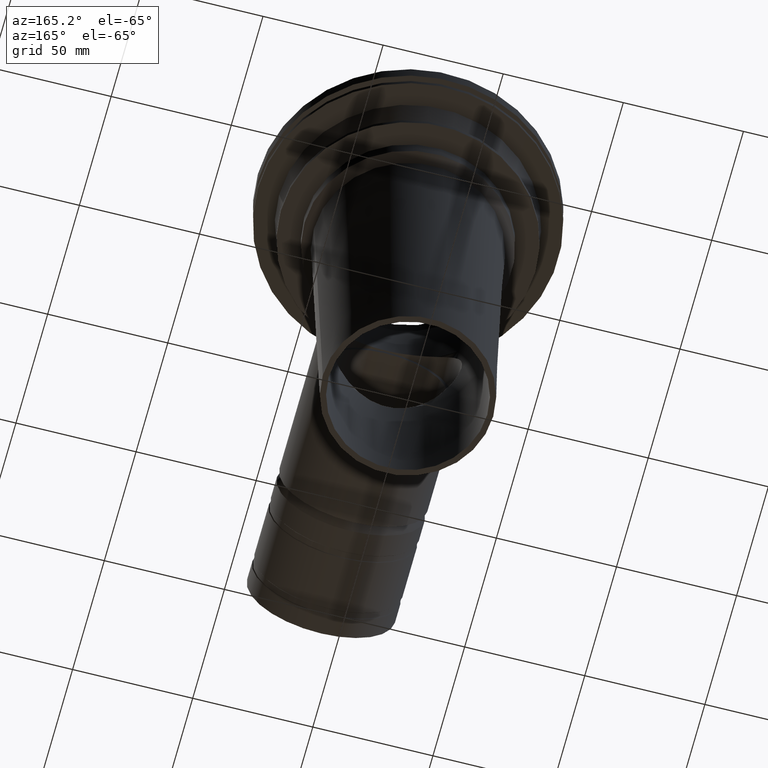
[diagram: clean part render]
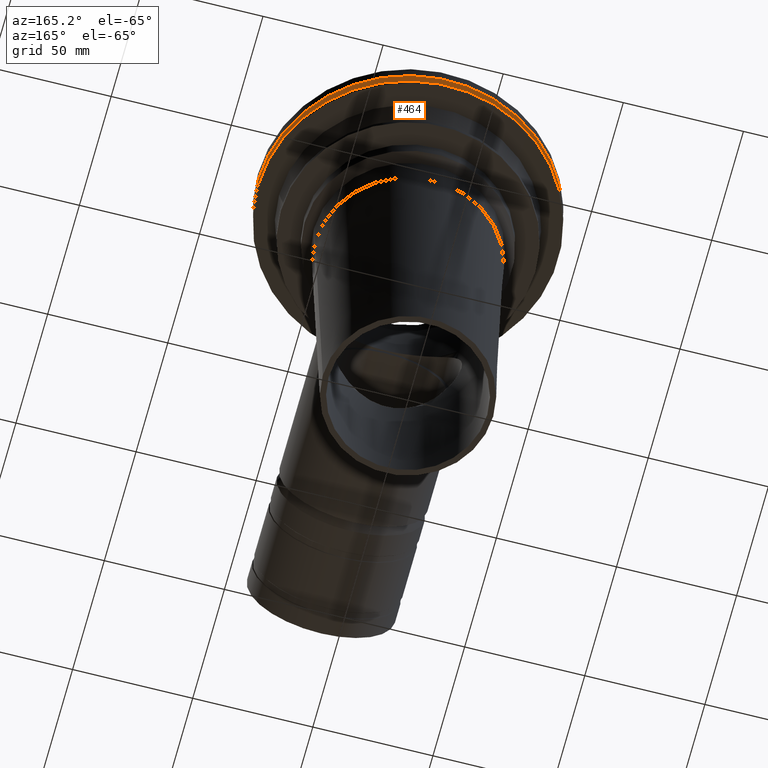
[diagram: same view with one face highlighted and labeled with its STEP entity id]
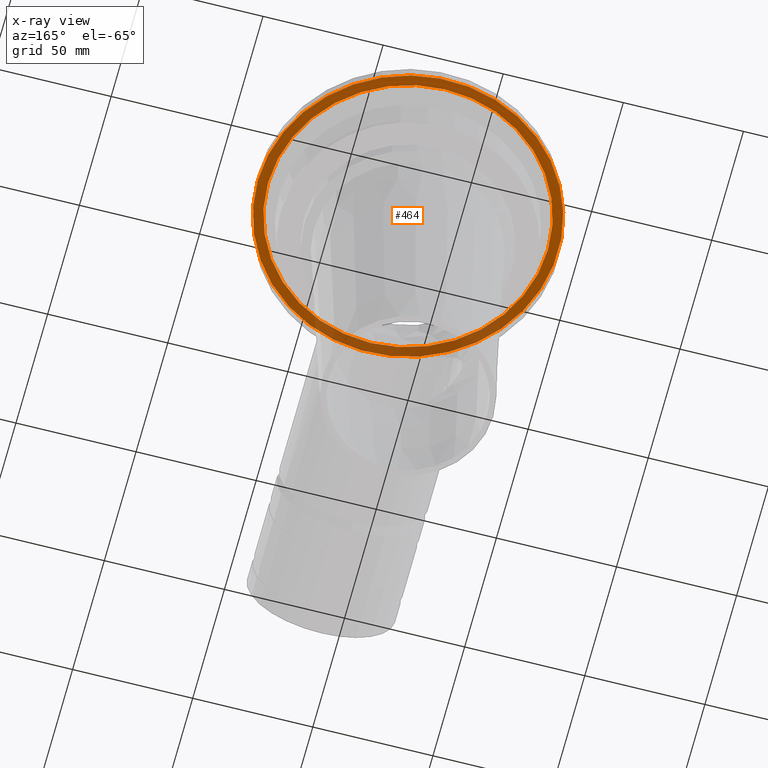
[diagram: x-ray of the same camera — body ghosted, the highlighted face saturated]
A machine part, auxiliary view. The second image highlights one B-rep face of the part: STEP entity #464.
The next image is the same camera in x-ray: the body ghosted, the highlighted face saturated — about 21% of this face is hidden behind the body in this view.
In plain terms, the highlighted planar face has unit normal (0, 0, -1).
Its self-contained STEP definition (entity closure, byte-faithful):
#24=PLANE('',#537);
#80=ORIENTED_EDGE('',*,*,#154,.T.);
#81=ORIENTED_EDGE('',*,*,#153,.F.);
#153=EDGE_CURVE('',#196,#196,#237,.T.);
#154=EDGE_CURVE('',#197,#197,#238,.T.);
#196=VERTEX_POINT('',#911);
#197=VERTEX_POINT('',#914);
#237=CIRCLE('',#536,62.5);
#238=CIRCLE('',#538,58.252);
#293=EDGE_LOOP('',(#80));
#294=EDGE_LOOP('',(#81));
#379=FACE_BOUND('',#293,.T.);
#380=FACE_BOUND('',#294,.T.);
#464=ADVANCED_FACE('',(#379,#380),#24,.T.);
#536=AXIS2_PLACEMENT_3D('',#910,#653,#654);
#537=AXIS2_PLACEMENT_3D('',#912,#655,#656);
#538=AXIS2_PLACEMENT_3D('',#913,#657,#658);
#653=DIRECTION('',(0.,0.,1.));
#654=DIRECTION('',(1.,0.,0.));
#655=DIRECTION('',(0.,0.,-1.));
#656=DIRECTION('',(-1.,0.,0.));
#657=DIRECTION('',(0.,0.,1.));
#658=DIRECTION('',(1.,0.,0.));
#910=CARTESIAN_POINT('',(0.,0.,-6.));
#911=CARTESIAN_POINT('',(62.5,0.,-6.));
#912=CARTESIAN_POINT('',(62.5,0.,-6.));
#913=CARTESIAN_POINT('',(0.,0.,-6.));
#914=CARTESIAN_POINT('',(58.252,0.,-6.));